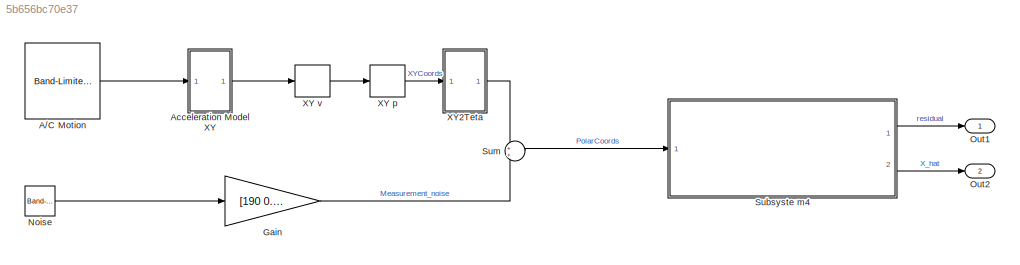
MODEL slx_5b656bc70e37
KIND model
CONFIG AbsTol = auto
CONFIG EnableMultiTasking = off
CONFIG FixedStep = 0.1
CONFIG MaxStep = auto
CONFIG MinStep = auto
CONFIG RelTol = 1e-3
CONFIG SampleTimeConstraint = Unconstrained
CONFIG Solver = FixedStepDiscrete
CONFIG SolverName = FixedStepDiscrete
CONFIG StartTime = 0.0
CONFIG StopFcn = aero_radplot_dsp;
CONFIG StopTime = 500
WORKSPACE source: mxarray member
WORKSPACE deltat = 1
WORKSPACE g = 32.2
WORKSPACE speed = 700
WORKSPACE tauT = 4
WORKSPACE tauc = 5
BLOCK [Reference] A//C Motion  REF=simulink/Sources/Band-Limited
White Noise
  Ports = [0, 1]
  SourceBlock = simulink/Sources/Band-Limited\nWhite Noise
  SourceProductBaseCode = SL
  SourceType = Band-Limited White Noise.
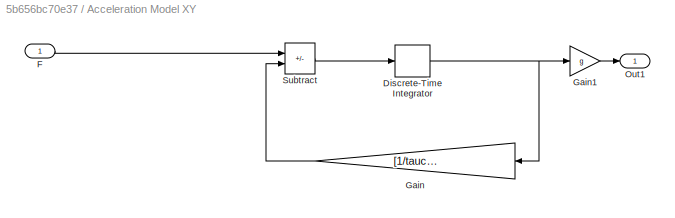
BLOCK [SubSystem] Acceleration Model XY
  Ports = [1, 1]
  RequestExecContextInheritance = off
BLOCK [DiscreteIntegrator] Acceleration Model XY/Discrete-Time Integrator
  ICPrevOutput = DiscIntNeverNeededParam
  ICPrevScaledInput = DiscIntNeverNeededParam
  Ports = [1, 1]
  SampleTime = -1
BLOCK [Inport] Acceleration Model XY/F
BLOCK [Gain] Acceleration Model XY/Gain
  Gain = [1/tauc, 1/tauT]
BLOCK [Gain] Acceleration Model XY/Gain1
  Gain = g
BLOCK [Outport] Acceleration Model XY/Out1
  VectorParamsAs1DForOutWhenUnconnected = off
BLOCK [Sum] Acceleration Model XY/Subtract
  IconShape = rectangular
  Inputs = +-
  Ports = [2, 1]
BLOCK [Gain] Gain
  Gain = [190 0.05]
BLOCK [Reference] Noise  REF=simulink/Sources/Band-Limited
White Noise
  Ports = [0, 1]
  SourceBlock = simulink/Sources/Band-Limited\nWhite Noise
  SourceProductBaseCode = SL
  SourceType = Band-Limited White Noise.
BLOCK [Outport] Out1
  VectorParamsAs1DForOutWhenUnconnected = off
BLOCK [Outport] Out2
  Port = 2
  VectorParamsAs1DForOutWhenUnconnected = off
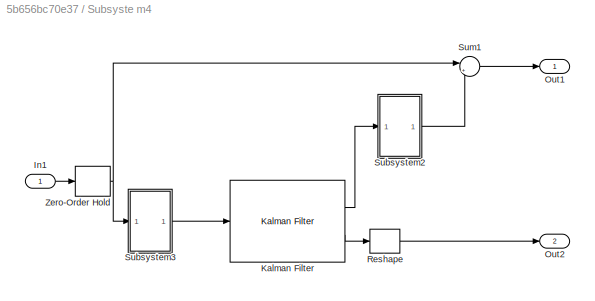
BLOCK [SubSystem] Subsyste m4
  Ports = [1, 2]
  RequestExecContextInheritance = off
BLOCK [Inport] Subsyste m4/In1
BLOCK [Reference] Subsyste m4/Kalman Filter  REF=dspadpt3/Kalman Filter
  Ports = [1, 2]
  SourceBlock = dspadpt3/Kalman Filter
  SourceProductBaseCode = DS
  SourceType = Kalman Filter
BLOCK [Outport] Subsyste m4/Out1
  VectorParamsAs1DForOutWhenUnconnected = off
BLOCK [Outport] Subsyste m4/Out2
  Port = 2
  VectorParamsAs1DForOutWhenUnconnected = off
BLOCK [Reshape] Subsyste m4/Reshape
  Ports = [1, 1]
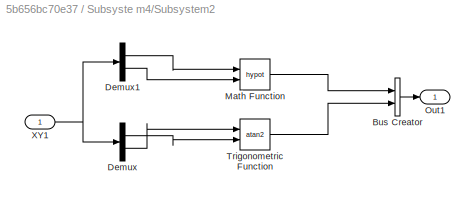
BLOCK [SubSystem] Subsyste m4/Subsystem2
  Ports = [1, 1]
  RequestExecContextInheritance = off
BLOCK [BusCreator] Subsyste m4/Subsystem2/Bus Creator
  DisplayOption = bar
  InheritFromInputs = on
  Inputs = 2
  Ports = [2, 1]
BLOCK [Demux] Subsyste m4/Subsystem2/Demux
  Outputs = 2
  Ports = [1, 2]
BLOCK [Demux] Subsyste m4/Subsystem2/Demux1
  Outputs = 2
  Ports = [1, 2]
BLOCK [Math] Subsyste m4/Subsystem2/Math Function
  Operator = hypot
  Ports = [2, 1]
  SignedPower = on
BLOCK [Outport] Subsyste m4/Subsystem2/Out1
  VectorParamsAs1DForOutWhenUnconnected = off
BLOCK [Trigonometry] Subsyste m4/Subsystem2/Trigonometric Function
  Operator = atan2
  Ports = [2, 1]
BLOCK [Inport] Subsyste m4/Subsystem2/XY1
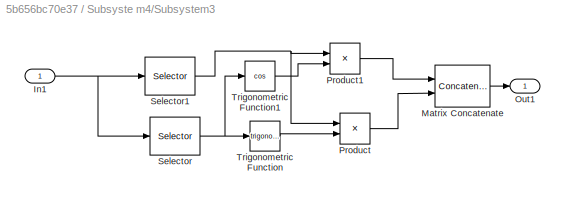
BLOCK [SubSystem] Subsyste m4/Subsystem3
  Ports = [1, 1]
  RequestExecContextInheritance = off
BLOCK [Inport] Subsyste m4/Subsystem3/In1
BLOCK [Concatenate] Subsyste m4/Subsystem3/Matrix Concatenate
  ConcatenateDimension = 2
  Ports = [2, 1]
BLOCK [Outport] Subsyste m4/Subsystem3/Out1
  VectorParamsAs1DForOutWhenUnconnected = off
BLOCK [Product] Subsyste m4/Subsystem3/Product
  Ports = [2, 1]
BLOCK [Product] Subsyste m4/Subsystem3/Product1
  Ports = [2, 1]
BLOCK [Selector] Subsyste m4/Subsystem3/Selector
  IndexOptions = Index vector (dialog)
  Indices = [2]
  InputPortWidth = 2
  OutputSizes = 1
  Ports = [1, 1]
BLOCK [Selector] Subsyste m4/Subsystem3/Selector1
  IndexOptions = Index vector (dialog)
  Indices = [1]
  InputPortWidth = 2
  OutputSizes = 1
  Ports = [1, 1]
BLOCK [Trigonometry] Subsyste m4/Subsystem3/Trigonometric Function
  Ports = [1, 1]
BLOCK [Trigonometry] Subsyste m4/Subsystem3/Trigonometric Function1
  Operator = cos
  Ports = [1, 1]
BLOCK [Sum] Subsyste m4/Sum1
  Inputs = |+-
  Ports = [2, 1]
BLOCK [ZeroOrderHold] Subsyste m4/Zero-Order Hold
  SampleTime = deltat
BLOCK [Sum] Sum
  OutDataTypeStr = Inherit: Same as first input
  Ports = [2, 1]
BLOCK [DiscreteIntegrator] XY p
  ICPrevOutput = DiscIntNeverNeededParam
  ICPrevScaledInput = DiscIntNeverNeededParam
  InitialCondition = [0, speed]
  Ports = [1, 1]
  SampleTime = -1
BLOCK [DiscreteIntegrator] XY v
  ICPrevOutput = DiscIntNeverNeededParam
  ICPrevScaledInput = DiscIntNeverNeededParam
  InitialCondition = [0, speed]
  Ports = [1, 1]
  SampleTime = -1
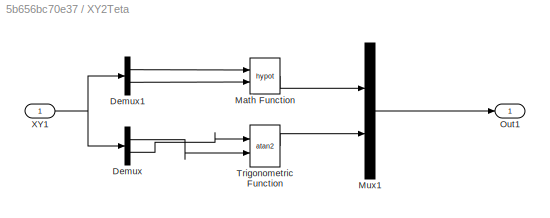
BLOCK [SubSystem] XY2Teta
  Ports = [1, 1]
  RequestExecContextInheritance = off
BLOCK [Demux] XY2Teta/Demux
  Outputs = 2
  Ports = [1, 2]
BLOCK [Demux] XY2Teta/Demux1
  Outputs = 2
  Ports = [1, 2]
BLOCK [Math] XY2Teta/Math Function
  Operator = hypot
  OutputSignalType = real
  Ports = [2, 1]
  SignedPower = on
BLOCK [Mux] XY2Teta/Mux1
  DisplayOption = bar
  Inputs = 2
  Ports = [2, 1]
BLOCK [Outport] XY2Teta/Out1
  PortDimensions = 2
  VectorParamsAs1DForOutWhenUnconnected = off
BLOCK [Trigonometry] XY2Teta/Trigonometric Function
  Operator = atan2
  OutputSignalType = real
  Ports = [2, 1]
BLOCK [Inport] XY2Teta/XY1
LINE A//C Motion:1 -> Acceleration Model XY:1
NET Acceleration Model XY/Discrete-Time Integrator:1 -> Acceleration Model XY/Gain1:1, Acceleration Model XY/Gain:1
LINE Acceleration Model XY/F:1 -> Acceleration Model XY/Subtract:1
LINE Acceleration Model XY/Gain1:1 -> Acceleration Model XY/Out1:1
LINE Acceleration Model XY/Gain:1 -> Acceleration Model XY/Subtract:2
LINE Acceleration Model XY/Subtract:1 -> Acceleration Model XY/Discrete-Time Integrator:1
LINE Acceleration Model XY:1 -> XY v:1
LINE Gain:1 -> Sum:2
LINE Noise:1 -> Gain:1
LINE Subsyste m4/In1:1 -> Subsyste m4/Zero-Order Hold:1
LINE Subsyste m4/Kalman Filter:1 -> Subsyste m4/Subsystem2:1
LINE Subsyste m4/Kalman Filter:2 -> Subsyste m4/Reshape:1
LINE Subsyste m4/Reshape:1 -> Subsyste m4/Out2:1
LINE Subsyste m4/Subsystem2/Bus Creator:1 -> Subsyste m4/Subsystem2/Out1:1
LINE Subsyste m4/Subsystem2/Demux1:1 -> Subsyste m4/Subsystem2/Math Function:1
LINE Subsyste m4/Subsystem2/Demux1:2 -> Subsyste m4/Subsystem2/Math Function:2
LINE Subsyste m4/Subsystem2/Demux:1 -> Subsyste m4/Subsystem2/Trigonometric Function:2
LINE Subsyste m4/Subsystem2/Demux:2 -> Subsyste m4/Subsystem2/Trigonometric Function:1
LINE Subsyste m4/Subsystem2/Math Function:1 -> Subsyste m4/Subsystem2/Bus Creator:1
LINE Subsyste m4/Subsystem2/Trigonometric Function:1 -> Subsyste m4/Subsystem2/Bus Creator:2
NET Subsyste m4/Subsystem2/XY1:1 -> Subsyste m4/Subsystem2/Demux1:1, Subsyste m4/Subsystem2/Demux:1
LINE Subsyste m4/Subsystem2:1 -> Subsyste m4/Sum1:2
NET Subsyste m4/Subsystem3/In1:1 -> Subsyste m4/Subsystem3/Selector1:1, Subsyste m4/Subsystem3/Selector:1
LINE Subsyste m4/Subsystem3/Matrix Concatenate:1 -> Subsyste m4/Subsystem3/Out1:1
LINE Subsyste m4/Subsystem3/Product1:1 -> Subsyste m4/Subsystem3/Matrix Concatenate:1
LINE Subsyste m4/Subsystem3/Product:1 -> Subsyste m4/Subsystem3/Matrix Concatenate:2
NET Subsyste m4/Subsystem3/Selector1:1 -> Subsyste m4/Subsystem3/Product1:1, Subsyste m4/Subsystem3/Product:1
NET Subsyste m4/Subsystem3/Selector:1 -> Subsyste m4/Subsystem3/Trigonometric Function1:1, Subsyste m4/Subsystem3/Trigonometric Function:1
LINE Subsyste m4/Subsystem3/Trigonometric Function1:1 -> Subsyste m4/Subsystem3/Product1:2
LINE Subsyste m4/Subsystem3/Trigonometric Function:1 -> Subsyste m4/Subsystem3/Product:2
LINE Subsyste m4/Subsystem3:1 -> Subsyste m4/Kalman Filter:1
LINE Subsyste m4/Sum1:1 -> Subsyste m4/Out1:1
NET Subsyste m4/Zero-Order Hold:1 -> Subsyste m4/Subsystem3:1, Subsyste m4/Sum1:1
LINE Subsyste m4:1 -> Out1:1
LINE Subsyste m4:2 -> Out2:1
LINE Sum:1 -> Subsyste m4:1
LINE XY p:1 -> XY2Teta:1
LINE XY v:1 -> XY p:1
LINE XY2Teta/Demux1:1 -> XY2Teta/Math Function:1
LINE XY2Teta/Demux1:2 -> XY2Teta/Math Function:2
LINE XY2Teta/Demux:1 -> XY2Teta/Trigonometric Function:2
LINE XY2Teta/Demux:2 -> XY2Teta/Trigonometric Function:1
LINE XY2Teta/Math Function:1 -> XY2Teta/Mux1:1
LINE XY2Teta/Mux1:1 -> XY2Teta/Out1:1
LINE XY2Teta/Trigonometric Function:1 -> XY2Teta/Mux1:2
NET XY2Teta/XY1:1 -> XY2Teta/Demux1:1, XY2Teta/Demux:1
LINE XY2Teta:1 -> Sum:1
note: NET lines group one-source signal fan-out (src -> all destinations, sorted); 1:1 wires keep LINE
